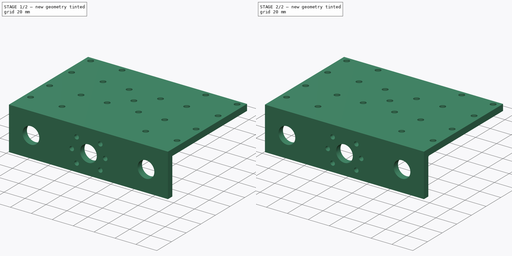
[diagram: build sequence overview — one tinted view per stage of 2, left to right]
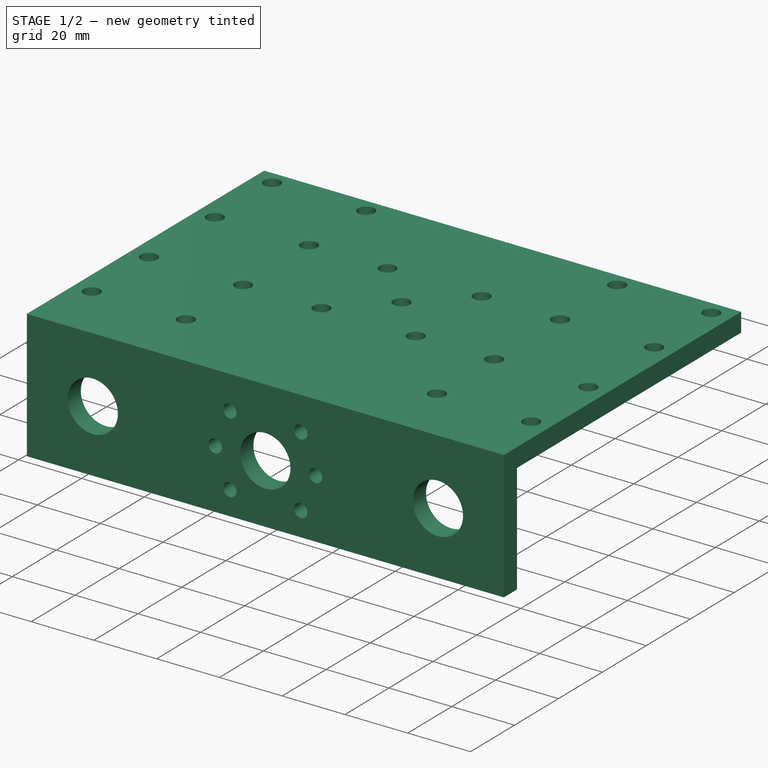
[diagram: stage 1 of 2 — iso view after this stage's code; geometry added in this stage tinted green]
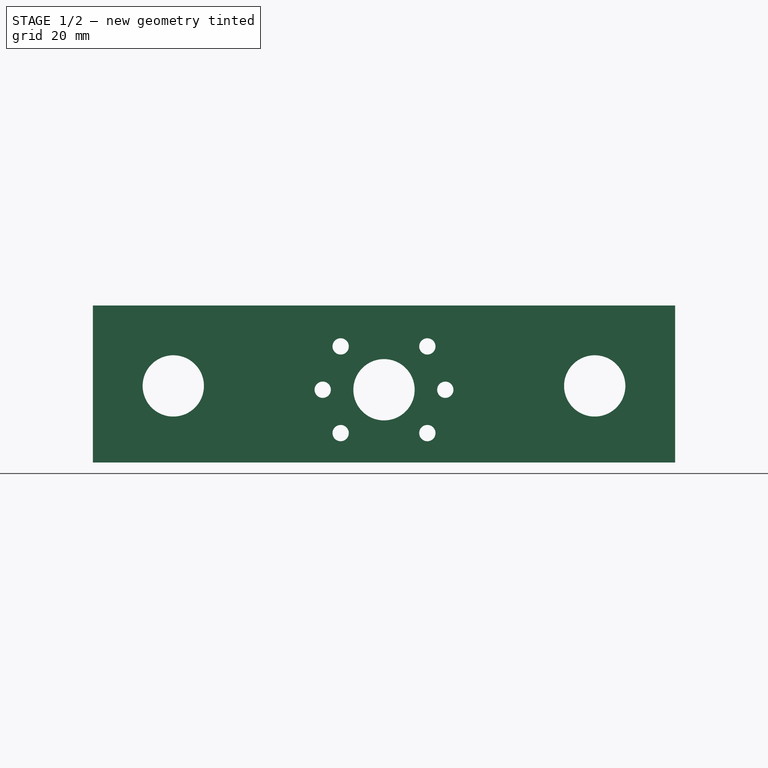
[diagram: stage 1 of 2 — front view after this stage's code; geometry added in this stage tinted green]
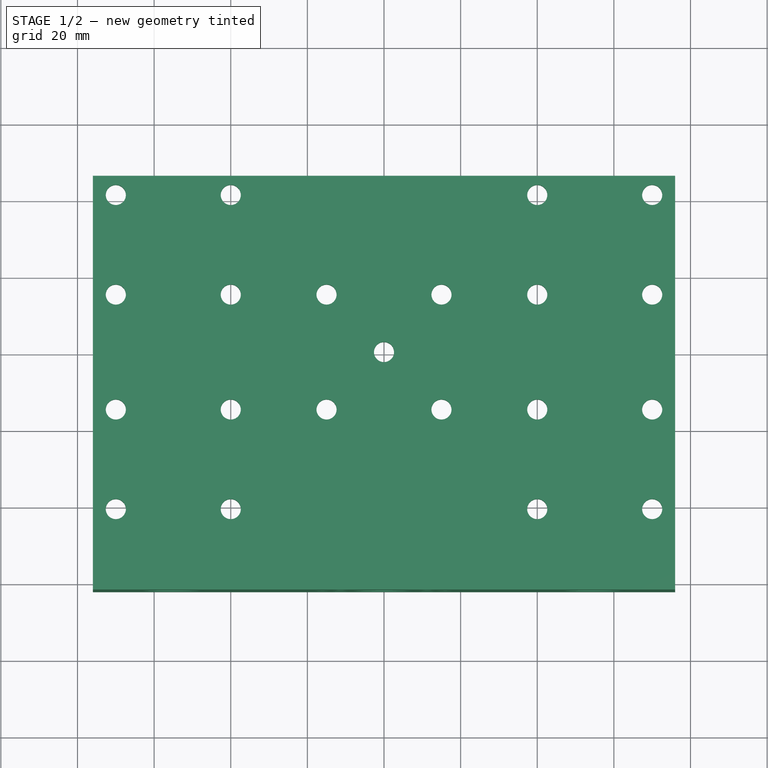
[diagram: stage 1 of 2 — top view after this stage's code; geometry added in this stage tinted green]
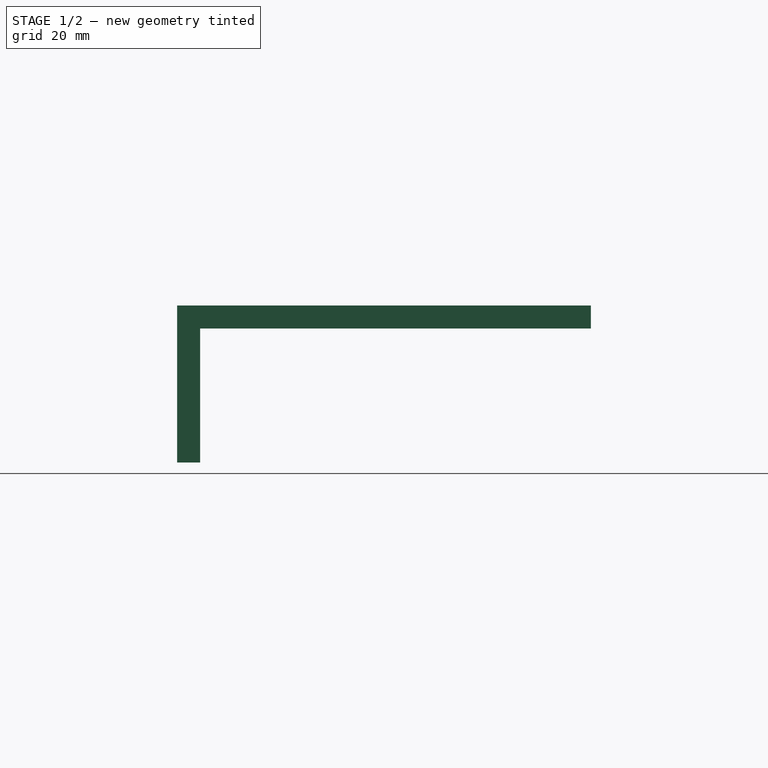
[diagram: stage 1 of 2 — right view after this stage's code; geometry added in this stage tinted green]
FCSTD DOCUMENT  (FreeCAD 0.15R4671 (Git))
Label: platform-z
License: All rights reserved
LicenseURL: http://en.wikipedia.org/wiki/All_rights_reserved
objects: Drawing::FeatureView×36, Drawing::FeatureViewPart×4, Sketcher::SketchObject×2, PartDesign::Pad×2, PartDesign::Fillet×1, Drawing::FeaturePage×1
note: 7 computed .brp shape members not serialized (recipe doc carries the construction recipe); baked Part::Feature solids carry a one-line shape summary decoded from their .brp

FEATURE [Sketcher::SketchObject] Sketch  label="top-sketch"
  sketch-geometry (39):
    g0: LineSegment StartX=-76 StartY=46 StartZ=0 EndX=76 EndY=46 EndZ=0
    g1: LineSegment StartX=76 StartY=46 StartZ=0 EndX=76 EndY=-56 EndZ=0
    g2: LineSegment StartX=76 StartY=-56 StartZ=0 EndX=-76 EndY=-56 EndZ=0
    g3: LineSegment StartX=-76 StartY=-56 StartZ=0 EndX=-76 EndY=46 EndZ=0
    g4: LineSegment [constr] StartX=-70 StartY=41 StartZ=0 EndX=70 EndY=41 EndZ=0
    g5: LineSegment [constr] StartX=70 StartY=41 StartZ=0 EndX=70 EndY=-41 EndZ=0
    g6: LineSegment [constr] StartX=70 StartY=-41 StartZ=0 EndX=-70 EndY=-41 EndZ=0
    g7: LineSegment [constr] StartX=-70 StartY=-41 StartZ=0 EndX=-70 EndY=41 EndZ=0
    g8: LineSegment [constr] StartX=-40 StartY=41 StartZ=0 EndX=-40 EndY=-41 EndZ=0
    g9: LineSegment [constr] StartX=40 StartY=41 StartZ=0 EndX=40 EndY=-41 EndZ=0
    g10: LineSegment [constr] StartX=-70 StartY=15 StartZ=0 EndX=-40 EndY=15 EndZ=0
    g11: LineSegment [constr] StartX=40 StartY=15 StartZ=0 EndX=70 EndY=15 EndZ=0
    g12: LineSegment [constr] StartX=-70 StartY=-15 StartZ=0 EndX=-40 EndY=-15 EndZ=0
    g13: LineSegment [constr] StartX=40 StartY=-15 StartZ=0 EndX=70 EndY=-15 EndZ=0
    g14: Circle CenterX=-70 CenterY=41 CenterZ=0 NormalX=0 NormalY=0 NormalZ=1 Radius=2.625
    g15: Circle CenterX=-40 CenterY=41 CenterZ=0 NormalX=0 NormalY=0 NormalZ=1 Radius=2.625
    g16: Circle CenterX=-70 CenterY=15 CenterZ=0 NormalX=0 NormalY=0 NormalZ=1 Radius=2.625
    g17: Circle CenterX=-40 CenterY=15 CenterZ=0 NormalX=0 NormalY=0 NormalZ=1 Radius=2.625
    g18: Circle CenterX=-70 CenterY=-15 CenterZ=0 NormalX=0 NormalY=0 NormalZ=1 Radius=2.625
    g19: Circle CenterX=-40 CenterY=-15 CenterZ=0 NormalX=0 NormalY=0 NormalZ=1 Radius=2.625
    g20: Circle CenterX=-70 CenterY=-41 CenterZ=0 NormalX=0 NormalY=0 NormalZ=1 Radius=2.625
    g21: Circle CenterX=-40 CenterY=-41 CenterZ=0 NormalX=0 NormalY=0 NormalZ=1 Radius=2.625
    g22: Circle CenterX=40 CenterY=41 CenterZ=0 NormalX=0 NormalY=0 NormalZ=1 Radius=2.625
    g23: Circle CenterX=70 CenterY=41 CenterZ=0 NormalX=0 NormalY=0 NormalZ=1 Radius=2.625
    g24: Circle CenterX=40 CenterY=15 CenterZ=0 NormalX=0 NormalY=0 NormalZ=1 Radius=2.625
    g25: Circle CenterX=70 CenterY=15 CenterZ=0 NormalX=0 NormalY=0 NormalZ=1 Radius=2.625
    g26: Circle CenterX=40 CenterY=-15 CenterZ=0 NormalX=0 NormalY=0 NormalZ=1 Radius=2.625
    g27: Circle CenterX=70 CenterY=-15 CenterZ=0 NormalX=0 NormalY=0 NormalZ=1 Radius=2.625
    g28: Circle CenterX=40 CenterY=-41 CenterZ=0 NormalX=0 NormalY=0 NormalZ=1 Radius=2.625
    g29: Circle CenterX=70 CenterY=-41 CenterZ=0 NormalX=0 NormalY=0 NormalZ=1 Radius=2.625
    g30: Circle CenterX=0 CenterY=0 CenterZ=0 NormalX=0 NormalY=0 NormalZ=1 Radius=2.625
    g31: LineSegment [constr] StartX=-15 StartY=15 StartZ=0 EndX=15 EndY=15 EndZ=0
    g32: LineSegment [constr] StartX=15 StartY=15 StartZ=0 EndX=15 EndY=-15 EndZ=0
    g33: LineSegment [constr] StartX=15 StartY=-15 StartZ=0 EndX=-15 EndY=-15 EndZ=0
    g34: LineSegment [constr] StartX=-15 StartY=-15 StartZ=0 EndX=-15 EndY=15 EndZ=0
    g35: Circle CenterX=-15 CenterY=15 CenterZ=0 NormalX=0 NormalY=0 NormalZ=1 Radius=2.625
    g36: Circle CenterX=15 CenterY=15 CenterZ=0 NormalX=0 NormalY=0 NormalZ=1 Radius=2.625
    g37: Circle CenterX=-15 CenterY=-15 CenterZ=0 NormalX=0 NormalY=0 NormalZ=1 Radius=2.625
    g38: Circle CenterX=15 CenterY=-15 CenterZ=0 NormalX=0 NormalY=0 NormalZ=1 Radius=2.625
  constraints (98):
    c: Coincident(g0,g1)
    c: Coincident(g1,g2)
    c: Coincident(g2,g3)
    c: Coincident(g3,g0)
    c: Horizontal(g0)
    c: Horizontal(g2)
    c: Vertical(g1)
    c: Vertical(g3)
    c: Symmetric(g0,g0,g-2)
    c: Coincident(g4,g5)
    c: Coincident(g5,g6)
    c: Coincident(g6,g7)
    c: Coincident(g7,g4)
    c: Horizontal(g4)
    c: Horizontal(g6)
    c: Vertical(g5)
    c: Vertical(g7)
    c: Symmetric(g4,g4,g-2)
    c: DistanceX(g2,g1) = 152
    c: DistanceX(g4,g0) = -6
    c: DistanceY(g4,g0) = 5
    c: PointOnObject(g8,g6)
    c: Vertical(g8)
    c: PointOnObject(g9,g4)
    c: PointOnObject(g9,g6)
    c: Vertical(g9)
    c: PointOnObject(g10,g7)
    c: PointOnObject(g10,g8)
    c: Horizontal(g10)
    c: PointOnObject(g11,g9)
    c: PointOnObject(g11,g5)
    c: Horizontal(g11)
    c: PointOnObject(g12,g7)
    c: PointOnObject(g12,g8)
    c: Horizontal(g12)
    c: PointOnObject(g13,g9)
    c: PointOnObject(g13,g5)
    c: Horizontal(g13)
    c: PointOnObject(g11,g10)
    c: PointOnObject(g13,g12)
    c: DistanceX(g6,g8) = 30
    c: DistanceY(g12,g6) = -26
    c: DistanceX(g9,g5) = 30
    c: DistanceY(g4,g10) = -26
    c: DistanceY(g6,g2) = -15
    c: Symmetric(g4,g6,g-1)
    c: DistanceY(g10,g12) = -30
    c: Coincident(g14,g4)
    c: Coincident(g15,g8)
    c: Coincident(g16,g10)
    c: Coincident(g17,g10)
    c: Coincident(g18,g12)
    c: Coincident(g19,g12)
    c: Coincident(g20,g6)
    c: Coincident(g21,g8)
    c: Coincident(g22,g9)
    c: Coincident(g23,g4)
    c: Coincident(g24,g11)
    c: Coincident(g25,g11)
    c: Coincident(g26,g13)
    c: Coincident(g27,g13)
    c: Coincident(g28,g9)
    c: Coincident(g29,g5)
    c: Radius(g14) = 2.625
    c: Equal(g14,g15)
    c: Equal(g14,g17)
    c: Equal(g14,g16)
    c: Equal(g14, g18-g21) x4
    c: Equal(g14,g28)
    c: Equal(g14,g29)
    c: Equal(g14,g27)
    c: Equal(g14,g26)
    c: Equal(g14,g24)
    c: Equal(g14,g25)
    c: Equal(g14,g22)
    c: Equal(g14,g23)
    c: Coincident(g30,g-1)
    c: Coincident(g31,g32)
    c: Coincident(g32,g33)
    c: Coincident(g33,g34)
    c: Coincident(g34,g31)
    c: Horizontal(g31)
    c: Horizontal(g33)
    c: Vertical(g32)
    c: Vertical(g34)
    c: Coincident(g35,g31)
    c: Coincident(g36,g31)
    c: Coincident(g37,g33)
    c: Coincident(g38,g32)
    c: Radius(g35) = 2.625
    c: Equal(g35,g36)
    c: Equal(g35,g38)
    c: Equal(g35,g37)
    c: Equal(g35,g30)
    c: Symmetric(g31,g33,g-1)
    c: Equal(g32,g33)
    c: DistanceX(g33,g32) = 30
    c: PointOnObject(g8,g4)
FEATURE [PartDesign::Pad] Pad  label="top"
  Length = 6
  Length2 = 100
  Sketch = -> Sketch
  Type = 0
FEATURE [Sketcher::SketchObject] Sketch001  label="front-sketch"
  ExternalGeometry = -> [Pad]
  Placement = pos=(0,-56,0) rot=(1,0,0;1.5708rad)
  Support = -> Pad [Face3]
  sketch-geometry (18):
    g0: LineSegment StartX=-76 StartY=6 StartZ=0 EndX=76 EndY=6 EndZ=0
    g1: LineSegment StartX=76 StartY=6 StartZ=0 EndX=76 EndY=-35 EndZ=0
    g2: LineSegment StartX=76 StartY=-35 StartZ=0 EndX=-76 EndY=-35 EndZ=0
    g3: LineSegment StartX=-76 StartY=-35 StartZ=0 EndX=-76 EndY=6 EndZ=0
    g4: LineSegment [constr] StartX=-76 StartY=-15 StartZ=0 EndX=76 EndY=-15 EndZ=0
    g5: Circle CenterX=0 CenterY=-16 CenterZ=0 NormalX=0 NormalY=0 NormalZ=1 Radius=8
    g6: Circle CenterX=-55 CenterY=-15 CenterZ=0 NormalX=0 NormalY=0 NormalZ=1 Radius=8
    g7: Circle CenterX=55 CenterY=-15 CenterZ=0 NormalX=0 NormalY=0 NormalZ=1 Radius=8
    g8: Circle [constr] CenterX=0 CenterY=-16 CenterZ=0 NormalX=0 NormalY=0 NormalZ=1 Radius=16
    g9: LineSegment [constr] StartX=-11.3137 StartY=-4.68629 StartZ=0 EndX=11.3137 EndY=-27.3137 EndZ=0
    g10: LineSegment [constr] StartX=-11.3137 StartY=-27.3137 StartZ=0 EndX=11.3137 EndY=-4.68629 EndZ=0
    g11: Circle CenterX=-11.3137 CenterY=-4.68629 CenterZ=0 NormalX=0 NormalY=0 NormalZ=1 Radius=2.125
    g12: Circle CenterX=11.3137 CenterY=-4.68629 CenterZ=0 NormalX=0 NormalY=0 NormalZ=1 Radius=2.125
    g13: Circle CenterX=-16 CenterY=-16 CenterZ=0 NormalX=0 NormalY=0 NormalZ=1 Radius=2.125
    g14: Circle CenterX=16 CenterY=-16 CenterZ=0 NormalX=0 NormalY=0 NormalZ=1 Radius=2.125
    g15: Circle CenterX=-11.3137 CenterY=-27.3137 CenterZ=0 NormalX=0 NormalY=0 NormalZ=1 Radius=2.125
    g16: Circle CenterX=11.3137 CenterY=-27.3137 CenterZ=0 NormalX=0 NormalY=0 NormalZ=1 Radius=2.125
    g17: LineSegment [constr] StartX=-16 StartY=-16 StartZ=0 EndX=16 EndY=-16 EndZ=0
  constraints (52):
    c: Coincident(g0,g1)
    c: Coincident(g1,g2)
    c: Coincident(g2,g3)
    c: Coincident(g3,g0)
    c: Horizontal(g0)
    c: Horizontal(g2)
    c: Vertical(g1)
    c: Vertical(g3)
    c: Coincident(g0,g-3)
    c: Coincident(g0,g-3)
    c: PointOnObject(g4,g3)
    c: PointOnObject(g4,g1)
    c: Horizontal(g4)
    c: PointOnObject(g6,g4)
    c: PointOnObject(g7,g4)
    c: DistanceX(g6,g7) = 110
    c: Symmetric(g7,g6,g-2)
    c: DistanceY(g-1,g4) = -15
    c: Radius(g6) = 8
    c: Equal(g6,g7)
    c: Radius(g5) = 8
    c: Coincident(g8,g5)
    c: DistanceY(g-1,g2) = -35
    c: Radius(g8) = 16
    c: PointOnObject(g9,g8)
    c: PointOnObject(g9,g8)
    c: PointOnObject(g10,g8)
    c: PointOnObject(g10,g8)
    c: Angle(g4,g10) = 0.785398
    c: Angle(g9,g4) = 0.785398
    c: Coincident(g11,g9)
    c: Coincident(g12,g10)
    c: Coincident(g15,g10)
    c: Coincident(g16,g9)
    c: Radius(g13) = 2.125
    c: Equal(g13,g11)
    c: Equal(g13,g12)
    c: Equal(g13,g14)
    c: Equal(g13,g16)
    c: Equal(g13,g15)
    c: PointOnObject(g5,g-2)
    c: PointOnObject(g5,g10)
    c: PointOnObject(g5,g9)
    c: Horizontal(g17)
    c: PointOnObject(g5,g17)
    c: PointOnObject(g13,g17)
    c: PointOnObject(g13,g8)
    c: PointOnObject(g14,g17)
    c: PointOnObject(g14,g8)
    c: PointOnObject(g17,g8)
    c: PointOnObject(g17,g8)
    c: DistanceY(g-1,g5) = -16
FEATURE [PartDesign::Pad] Pad001  label="front"
  Length = 6
  Length2 = 100
  Sketch = -> Sketch001
  Type = 0
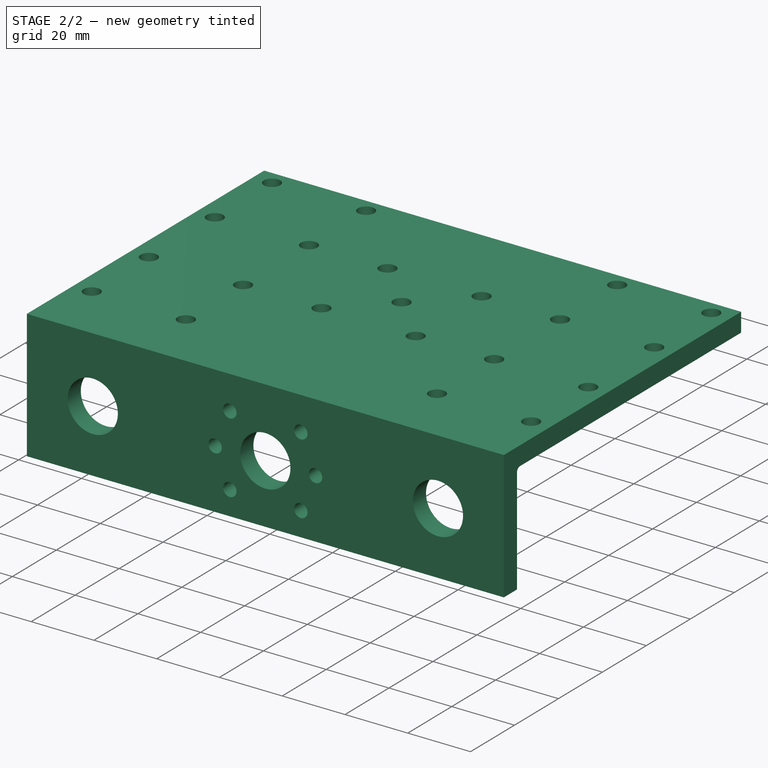
[diagram: stage 2 of 2 — iso view after this stage's code; geometry added in this stage tinted green]
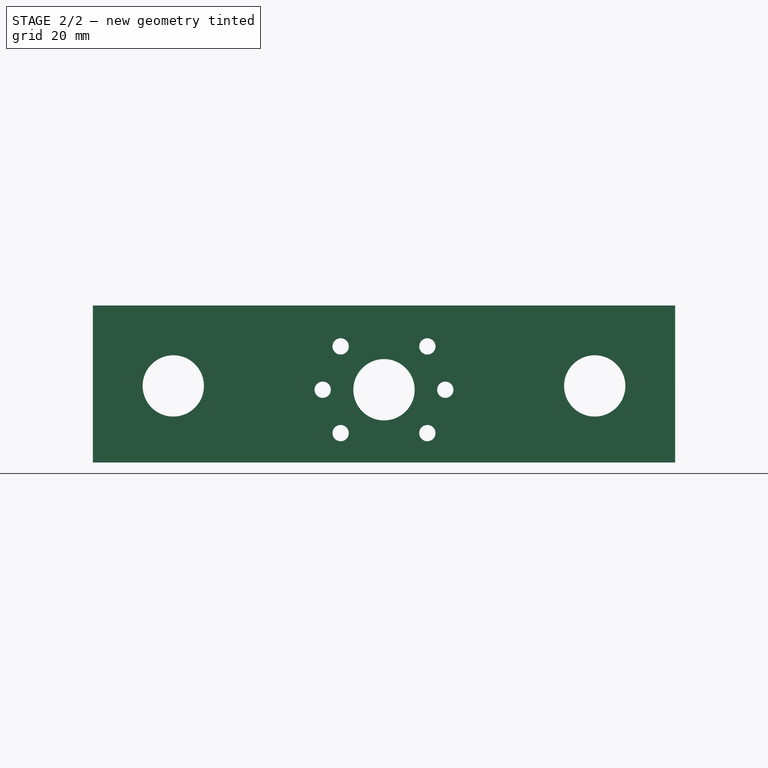
[diagram: stage 2 of 2 — front view after this stage's code; geometry added in this stage tinted green]
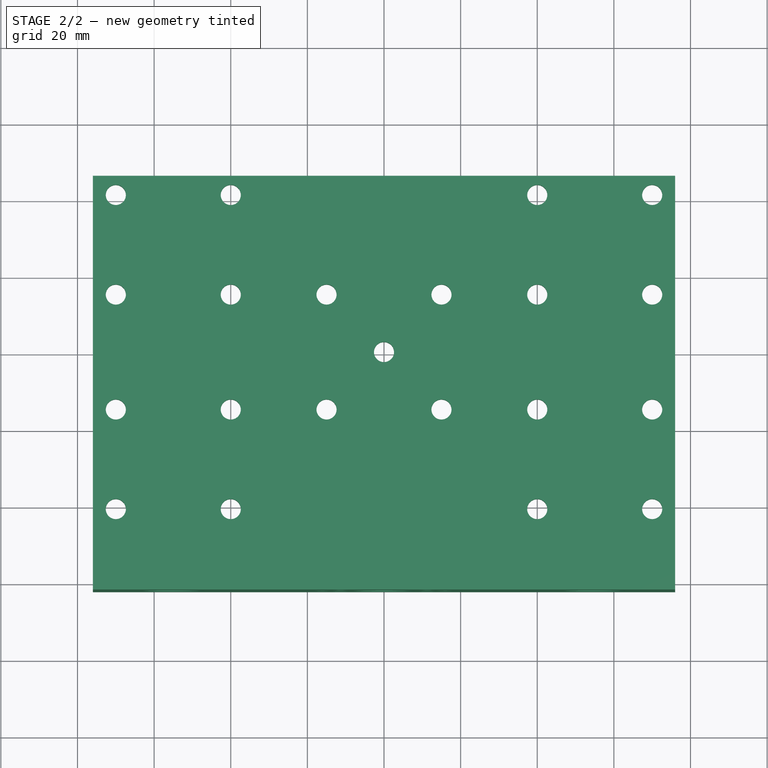
[diagram: stage 2 of 2 — top view after this stage's code; geometry added in this stage tinted green]
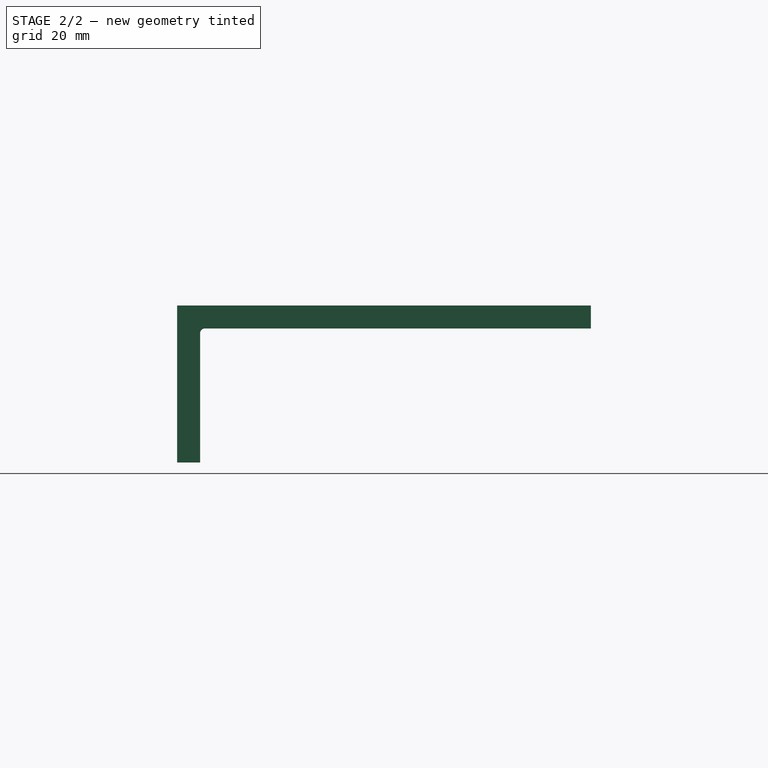
[diagram: stage 2 of 2 — right view after this stage's code; geometry added in this stage tinted green]
FEATURE [PartDesign::Fillet] Fillet  label="platform-z"
  Base = -> Pad001 [Edge7]
  Radius = 1.25
FEATURE [Drawing::FeatureViewPart] Ortho  label="Ortho_0_0"
  Direction = (0,-1,0)
  HiddenWidth = 0.15
  LineWidth = 0.35
  Rotation = 90
  Scale = 0.75
  ShowHiddenLines = false
  ShowSmoothLines = false
  Source = -> Fillet
  Tolerance = 0.05
  ViewResult = <g id="Ortho_0_0"\n   transform="rotate(90,91,151) translate(91,151) scale(0.75,0.75)"\n  >\n<g   stroke="rgb(0, 0, 0)"\n   stroke-width="0.466667"\n   stroke-linecap="butt"\n   stroke-linejoin="miter"\n   fill="none"\n   transform="scale(1,-1)"\n  >\n<path id= "1" d=" M 35 -76 L -6 -76 " />\n<path id= "2" d=" M -6 76 L 35 76 " />\n<path id= "3" d=" M -6 -76 L -6 76 " />\n<path id= "4" d=" M 35 76 L 35 -76 " />\n<circle cx ="16" cy ="0" r ="8" /><circle cx ="15" cy ="55" r ="8" /><circle cx ="15" cy ="-55" r ="8" /><circle cx ="27.3137" cy ="-11.3137" r ="2.125" /><circle cx ="16" cy ="16" r ="2.125" /><circle cx ="16" cy ="-16" r ="2.125" /><circle cx ="4.68629" cy ="11.3137" r ="2.125" /><circle cx ="27.3137" cy ="11.3137" r ="2.125" /><circle cx ="4.68629" cy ="-11.3137" r ="2.125" /></g>\n</g>
  Visible = true
  X = 91
  Y = 151
FEATURE [Drawing::FeatureViewPart] Ortho001  label="Ortho_0_1"
  Direction = (0,0,1)
  HiddenWidth = 0.15
  LineWidth = 0.35
  Rotation = 0
  Scale = 0.75
  ShowHiddenLines = false
  ShowSmoothLines = false
  Source = -> Fillet
  Tolerance = 0.05
  ViewResult = <blob: 2884 chars omitted>
  Visible = true
  X = 91
  Y = 67.25
FEATURE [Drawing::FeatureViewPart] Ortho002  label="Ortho_1_0"
  Direction = (1,0,0)
  HiddenWidth = 0.15
  LineWidth = 0.35
  Rotation = -90
  Scale = 0.75
  ShowHiddenLines = false
  ShowSmoothLines = false
  Source = -> Fillet
  Tolerance = 0.05
  ViewResult = <g id="Ortho_1_0"\n   transform="rotate(-90,228.5,151) translate(228.5,151) scale(0.75,0.75)"\n  >\n<g   stroke="rgb(0, 0, 0)"\n   stroke-width="0.466667"\n   stroke-linecap="butt"\n   stroke-linejoin="miter"\n   fill="none"\n   transform="scale(1,-1)"\n  >\n<path id= "1" d=" M 0 -46 L 0 54.75 " />\n<path d="M-2.22045e-16 54.75 A1.25 1.25 0 0 1 -1.25 56" /><path id= "3" d=" M 0 -46 L 6 -46 " />\n<path id= "4" d=" M -1.25 56 L -35 56 " />\n<path id= "5" d=" M -35 56 L -35 62 " />\n<path id= "6" d=" M 6 62 L -35 62 " />\n<path id= "7" d=" M 6 56 L 6 62 " />\n<path id= "8" d=" M 6 -46 L 6 56 " />\n</g>\n</g>
  Visible = true
  X = 228.5
  Y = 151
FEATURE [Drawing::FeatureViewPart] Ortho003  label="Ortho_1_1"
  Direction = (0.57735,-0.57735,0.57735)
  HiddenWidth = 0.15
  LineWidth = 0.35
  Rotation = 60
  Scale = 0.5
  ShowHiddenLines = false
  ShowSmoothLines = false
  Source = -> Fillet
  Tolerance = 0.05
  ViewResult = <blob: 7587 chars omitted>
  Visible = true
  X = 225.328
  Y = 65.6974
FEATURE [Drawing::FeatureView] centerLines001
  Rotation = 0
  ViewResult = <g transform="scale(0.750000,0.750000)" stroke="rgb(0,0,255)"  stroke-width="0.426667" > <path d="M 121.333333,43.666667 L 121.333333,39.666667 M 121.333333,37.000000 L 121.333333,32.348286 "/>\n<path d="M 121.333333,43.666667 L 121.333333,47.666667 M 121.333333,50.333333 L 121.333333,58.333333 M 121.333333,61.000000 L 121.333333,65.000000 M 121.333333,67.666667 L 121.333333,75.666667 M 121.333333,78.333333 L 121.333333,82.333333 M 121.333333,85.000000 L 121.333333,93.000000 M 121.333333,95.666667 L 121.333333,99.666667 M 121.333333,102.333333 L 121.333333,110.333333 M 121.333333,113.000000 L 121.333333,117.000000 M 121.333333,119.666667 L 121.333333,127.666667 M 121.333333,130.333333 L 121.333333,134.333333 M 121.333333,137.000000 L 121.333333,145.000000 M 121.333333,147.666667 L 121.333333,151.666667 M 121.333333,154.333333 L 121.333333,159.397352 "/> </g> 
  Visible = true
  X = 0
  Y = 0
FEATURE [Drawing::FeatureView] dim001
  Rotation = 0
  ViewResult = <g> \n  <line x1="34.000000" y1="30.750000" x2="34.000000" y2="12.374008" style="stroke:rgb(0,0,255);stroke-width:0.50" />\n<line x1="148.000000" y1="30.750000" x2="148.000000" y2="12.374008" style="stroke:rgb(0,0,255);stroke-width:0.50" />\n<line x1="34.000000" y1="13.374008" x2="148.000000" y2="13.374008" style="stroke:rgb(0,0,255);stroke-width:0.50" /> \n  <polygon points="148.000000,13.374008 145.000000,12.374008 144.000000,13.374008 145.000000,14.374008" style="fill:rgb(0,0,255);stroke:rgb(0,0,255);stroke-width:0" /><polygon points="34.000000,13.374008 37.000000,14.374008 38.000000,13.374008 37.000000,12.374008" style="fill:rgb(0,0,255);stroke:rgb(0,0,255);stroke-width:0" /> \n  <text x="91.000000" y="11.374008" font-family="inherit" font-size="3.6" fill="rgb(0,0,255)" text-anchor="middle" transform="rotate(0.000000 91.000000,11.374008)" >152</text> </g>
  Visible = true
  X = 0
  Y = 0
FEATURE [Drawing::FeatureView] dim002
  Rotation = 0
  ViewResult = <g> \n  <line x1="34.000000" y1="30.750000" x2="34.000000" y2="20.130933" style="stroke:rgb(0,0,255);stroke-width:0.50" />\n<line x1="91.000000" y1="22.261215" x2="91.000000" y2="20.130933" style="stroke:rgb(0,0,255);stroke-width:0.50" />\n<line x1="34.000000" y1="21.130933" x2="91.000000" y2="21.130933" style="stroke:rgb(0,0,255);stroke-width:0.50" /> \n  <polygon points="91.000000,21.130933 88.000000,20.130933 87.000000,21.130933 88.000000,22.130933" style="fill:rgb(0,0,255);stroke:rgb(0,0,255);stroke-width:0" /><polygon points="34.000000,21.130933 37.000000,22.130933 38.000000,21.130933 37.000000,20.130933" style="fill:rgb(0,0,255);stroke:rgb(0,0,255);stroke-width:0" /> \n  <text x="62.500000" y="19.130933" font-family="inherit" font-size="3.6" fill="rgb(0,0,255)" text-anchor="middle" transform="rotate(0.000000 62.500000,19.130933)" >76</text> </g>
  Visible = true
  X = 0
  Y = 0
FEATURE [Drawing::FeatureView] dim003
  Rotation = 0
  ViewResult = <g> \n  <line x1="32.000000" y1="32.750000" x2="19.542477" y2="32.750000" style="stroke:rgb(0,0,255);stroke-width:0.50" />\n<line x1="32.000000" y1="113.750000" x2="19.542477" y2="113.750000" style="stroke:rgb(0,0,255);stroke-width:0.50" />\n<line x1="20.542477" y1="32.750000" x2="20.542477" y2="113.750000" style="stroke:rgb(0,0,255);stroke-width:0.50" /> \n  <polygon points="20.542477,113.750000 21.542477,110.750000 20.542477,109.750000 19.542477,110.750000" style="fill:rgb(0,0,255);stroke:rgb(0,0,255);stroke-width:0" /><polygon points="20.542477,32.750000 19.542477,35.750000 20.542477,36.750000 21.542477,35.750000" style="fill:rgb(0,0,255);stroke:rgb(0,0,255);stroke-width:0" /> \n  <text x="18.542477" y="73.250000" font-family="inherit" font-size="3.6" fill="rgb(0,0,255)" text-anchor="middle" transform="rotate(-90.000000 18.542477,73.250000)" >108</text> </g>
  Visible = true
  X = 0
  Y = 0
FEATURE [Drawing::FeatureView] dim004
  Rotation = 0
  ViewResult = <g> \n  <line x1="38.500000" y1="100.000000" x2="38.500000" y2="122.239603" style="stroke:rgb(0,0,255);stroke-width:0.50" />\n<line x1="61.000000" y1="100.000000" x2="61.000000" y2="122.239603" style="stroke:rgb(0,0,255);stroke-width:0.50" />\n<line x1="38.500000" y1="121.239603" x2="61.000000" y2="121.239603" style="stroke:rgb(0,0,255);stroke-width:0.50" /> \n  <polygon points="61.000000,121.239603 58.000000,120.239603 57.000000,121.239603 58.000000,122.239603" style="fill:rgb(0,0,255);stroke:rgb(0,0,255);stroke-width:0" /><polygon points="38.500000,121.239603 41.500000,122.239603 42.500000,121.239603 41.500000,120.239603" style="fill:rgb(0,0,255);stroke:rgb(0,0,255);stroke-width:0" /> \n  <text x="49.750000" y="119.239603" font-family="inherit" font-size="3.6" fill="rgb(0,0,255)" text-anchor="middle" transform="rotate(0.000000 49.750000,119.239603)" >30</text> </g>
  Visible = true
  X = 0
  Y = 0
FEATURE [Drawing::FeatureView] dim005
  Rotation = 0
  ViewResult = <g> \n  <line x1="121.000000" y1="100.000000" x2="121.000000" y2="122.380908" style="stroke:rgb(0,0,255);stroke-width:0.50" />\n<line x1="143.500000" y1="100.000000" x2="143.500000" y2="122.380908" style="stroke:rgb(0,0,255);stroke-width:0.50" />\n<line x1="121.000000" y1="121.380908" x2="143.500000" y2="121.380908" style="stroke:rgb(0,0,255);stroke-width:0.50" /> \n  <polygon points="143.500000,121.380908 140.500000,120.380908 139.500000,121.380908 140.500000,122.380908" style="fill:rgb(0,0,255);stroke:rgb(0,0,255);stroke-width:0" /><polygon points="121.000000,121.380908 124.000000,122.380908 125.000000,121.380908 124.000000,120.380908" style="fill:rgb(0,0,255);stroke:rgb(0,0,255);stroke-width:0" /> \n  <text x="132.250000" y="119.380908" font-family="inherit" font-size="3.6" fill="rgb(0,0,255)" text-anchor="middle" transform="rotate(0.000000 132.250000,119.380908)" >30</text> </g>
  Visible = true
  X = 0
  Y = 0
FEATURE [Drawing::FeatureView] dim006
  Rotation = 0
  ViewResult = <g> \n  <line x1="38.500000" y1="100.000000" x2="38.500000" y2="128.039539" style="stroke:rgb(0,0,255);stroke-width:0.50" />\n<line x1="143.500000" y1="100.000000" x2="143.500000" y2="128.039539" style="stroke:rgb(0,0,255);stroke-width:0.50" />\n<line x1="38.500000" y1="127.039539" x2="143.500000" y2="127.039539" style="stroke:rgb(0,0,255);stroke-width:0.50" /> \n  <polygon points="143.500000,127.039539 140.500000,126.039539 139.500000,127.039539 140.500000,128.039539" style="fill:rgb(0,0,255);stroke:rgb(0,0,255);stroke-width:0" /><polygon points="38.500000,127.039539 41.500000,128.039539 42.500000,127.039539 41.500000,126.039539" style="fill:rgb(0,0,255);stroke:rgb(0,0,255);stroke-width:0" /> \n  <text x="91.000000" y="125.039539" font-family="inherit" font-size="3.6" fill="rgb(0,0,255)" text-anchor="middle" transform="rotate(0.000000 91.000000,125.039539)" >140</text> </g>
  Visible = true
  X = 0
  Y = 0
FEATURE [Drawing::FeatureView] dim007
  Rotation = 0
  ViewResult = <g> \n  <line x1="34.000000" y1="115.750000" x2="34.000000" y2="128.039539" style="stroke:rgb(0,0,255);stroke-width:0.50" />\n<line x1="38.500000" y1="100.000000" x2="38.500000" y2="128.039539" style="stroke:rgb(0,0,255);stroke-width:0.50" />\n<line x1="34.000000" y1="127.039539" x2="38.500000" y2="127.039539" style="stroke:rgb(0,0,255);stroke-width:0.50" /> \n  <polygon points="38.500000,127.039539 41.500000,128.039539 42.500000,127.039539 41.500000,126.039539" style="fill:rgb(0,0,255);stroke:rgb(0,0,255);stroke-width:0" /><polygon points="34.000000,127.039539 31.000000,126.039539 30.000000,127.039539 31.000000,128.039539" style="fill:rgb(0,0,255);stroke:rgb(0,0,255);stroke-width:0" /> \n  <text x="36.250000" y="125.039539" font-family="inherit" font-size="3.6" fill="rgb(0,0,255)" text-anchor="middle" transform="rotate(0.000000 36.250000,125.039539)" >6</text> </g>
  Visible = true
  X = 0
  Y = 0
FEATURE [Drawing::FeatureView] dim008
  Rotation = 0
  ViewResult = <g> \n  <line x1="145.500000" y1="36.500000" x2="157.222668" y2="36.500000" style="stroke:rgb(0,0,255);stroke-width:0.50" />\n<line x1="145.500000" y1="56.000000" x2="157.222668" y2="56.000000" style="stroke:rgb(0,0,255);stroke-width:0.50" />\n<line x1="156.222668" y1="36.500000" x2="156.222668" y2="56.000000" style="stroke:rgb(0,0,255);stroke-width:0.50" /> \n  <polygon points="156.222668,56.000000 157.222668,53.000000 156.222668,52.000000 155.222668,53.000000" style="fill:rgb(0,0,255);stroke:rgb(0,0,255);stroke-width:0" /><polygon points="156.222668,36.500000 155.222668,39.500000 156.222668,40.500000 157.222668,39.500000" style="fill:rgb(0,0,255);stroke:rgb(0,0,255);stroke-width:0" /> \n  <text x="154.222668" y="46.250000" font-family="inherit" font-size="3.6" fill="rgb(0,0,255)" text-anchor="middle" transform="rotate(-90.000000 154.222668,46.250000)" >26</text> </g>
  Visible = true
  X = 0
  Y = 0
FEATURE [Drawing::FeatureView] dim009
  Rotation = 0
  ViewResult = <g> \n  <line x1="145.500000" y1="78.500000" x2="157.729337" y2="78.500000" style="stroke:rgb(0,0,255);stroke-width:0.50" />\n<line x1="145.500000" y1="98.000000" x2="157.729337" y2="98.000000" style="stroke:rgb(0,0,255);stroke-width:0.50" />\n<line x1="156.729337" y1="78.500000" x2="156.729337" y2="98.000000" style="stroke:rgb(0,0,255);stroke-width:0.50" /> \n  <polygon points="156.729337,98.000000 157.729337,95.000000 156.729337,94.000000 155.729337,95.000000" style="fill:rgb(0,0,255);stroke:rgb(0,0,255);stroke-width:0" /><polygon points="156.729337,78.500000 155.729337,81.500000 156.729337,82.500000 157.729337,81.500000" style="fill:rgb(0,0,255);stroke:rgb(0,0,255);stroke-width:0" /> \n  <text x="154.729337" y="88.250000" font-family="inherit" font-size="3.6" fill="rgb(0,0,255)" text-anchor="middle" transform="rotate(-90.000000 154.729337,88.250000)" >26</text> </g>
  Visible = true
  X = 0
  Y = 0
FEATURE [Drawing::FeatureView] dim010
  Rotation = 0
  ViewResult = <g> \n  <line x1="145.500000" y1="36.500000" x2="164.316022" y2="36.500000" style="stroke:rgb(0,0,255);stroke-width:0.50" />\n<line x1="145.500000" y1="98.000000" x2="164.316022" y2="98.000000" style="stroke:rgb(0,0,255);stroke-width:0.50" />\n<line x1="163.316022" y1="36.500000" x2="163.316022" y2="98.000000" style="stroke:rgb(0,0,255);stroke-width:0.50" /> \n  <polygon points="163.316022,98.000000 164.316022,95.000000 163.316022,94.000000 162.316022,95.000000" style="fill:rgb(0,0,255);stroke:rgb(0,0,255);stroke-width:0" /><polygon points="163.316022,36.500000 162.316022,39.500000 163.316022,40.500000 164.316022,39.500000" style="fill:rgb(0,0,255);stroke:rgb(0,0,255);stroke-width:0" /> \n  <text x="161.316022" y="67.250000" font-family="inherit" font-size="3.6" fill="rgb(0,0,255)" text-anchor="middle" transform="rotate(-90.000000 161.316022,67.250000)" >82</text> </g>
  Visible = true
  X = 0
  Y = 0
FEATURE [Drawing::FeatureView] dim011
  Rotation = 0
  ViewResult = <g> \n  <line x1="150.000000" y1="113.750000" x2="164.316022" y2="113.750000" style="stroke:rgb(0,0,255);stroke-width:0.50" />\n<line x1="145.500000" y1="98.000000" x2="164.316022" y2="98.000000" style="stroke:rgb(0,0,255);stroke-width:0.50" />\n<line x1="163.316022" y1="113.750000" x2="163.316022" y2="98.000000" style="stroke:rgb(0,0,255);stroke-width:0.50" /> \n  <polygon points="163.316022,98.000000 162.316022,101.000000 163.316022,102.000000 164.316022,101.000000" style="fill:rgb(0,0,255);stroke:rgb(0,0,255);stroke-width:0" /><polygon points="163.316022,113.750000 164.316022,110.750000 163.316022,109.750000 162.316022,110.750000" style="fill:rgb(0,0,255);stroke:rgb(0,0,255);stroke-width:0" /> \n  <text x="161.316022" y="105.875000" font-family="inherit" font-size="3.6" fill="rgb(0,0,255)" text-anchor="middle" transform="rotate(-90.000000 161.316022,105.875000)" >21</text> </g>
  Visible = true
  X = 0
  Y = 0
FEATURE [Drawing::FeatureView] centerLines002
  Rotation = 0
  ViewResult = <g transform="scale(0.750000,0.750000)" stroke="rgb(0,0,255)"  stroke-width="0.426667" > <path d="M 121.333333,89.666667 L 121.333333,91.605595 "/>\n<path d="M 121.333333,89.666667 L 117.333333,89.666667 M 114.666667,89.666667 L 106.666667,89.666667 M 104.000000,89.666667 L 100.000000,89.666667 M 97.333333,89.666667 L 94.578048,89.666667 "/>\n<path d="M 121.333333,89.666667 L 121.333333,89.714034 "/>\n<path d="M 121.333333,89.666667 L 125.333333,89.666667 M 128.000000,89.666667 L 136.000000,89.666667 M 138.666667,89.666667 L 142.666667,89.666667 M 145.333333,89.666667 L 147.541755,89.666667 "/> </g> 
  Visible = true
  X = 0
  Y = 0
FEATURE [Drawing::FeatureView] dim012
  Rotation = 0
  ViewResult = <g> \n  <line x1="77.750000" y1="78.500000" x2="69.722424" y2="78.500000" style="stroke:rgb(0,0,255);stroke-width:0.50" />\n<line x1="89.000000" y1="113.750000" x2="69.722424" y2="113.750000" style="stroke:rgb(0,0,255);stroke-width:0.50" />\n<line x1="70.722424" y1="78.500000" x2="70.722424" y2="113.750000" style="stroke:rgb(0,0,255);stroke-width:0.50" /> \n  <polygon points="70.722424,113.750000 71.722424,110.750000 70.722424,109.750000 69.722424,110.750000" style="fill:rgb(0,0,255);stroke:rgb(0,0,255);stroke-width:0" /><polygon points="70.722424,78.500000 69.722424,81.500000 70.722424,82.500000 71.722424,81.500000" style="fill:rgb(0,0,255);stroke:rgb(0,0,255);stroke-width:0" /> \n  <text x="68.722424" y="96.125000" font-family="inherit" font-size="3.6" fill="rgb(0,0,255)" text-anchor="middle" transform="rotate(-90.000000 68.722424,96.125000)" >47</text> </g>
  Visible = true
  X = 0
  Y = 0
FEATURE [Drawing::FeatureView] dim013
  Rotation = 0
  ViewResult = <g> \n  <line x1="77.750000" y1="78.500000" x2="69.722424" y2="78.500000" style="stroke:rgb(0,0,255);stroke-width:0.50" />\n<line x1="77.750000" y1="56.000000" x2="69.722424" y2="56.000000" style="stroke:rgb(0,0,255);stroke-width:0.50" />\n<line x1="70.722424" y1="78.500000" x2="70.722424" y2="56.000000" style="stroke:rgb(0,0,255);stroke-width:0.50" /> \n  <polygon points="70.722424,56.000000 69.722424,59.000000 70.722424,60.000000 71.722424,59.000000" style="fill:rgb(0,0,255);stroke:rgb(0,0,255);stroke-width:0" /><polygon points="70.722424,78.500000 71.722424,75.500000 70.722424,74.500000 69.722424,75.500000" style="fill:rgb(0,0,255);stroke:rgb(0,0,255);stroke-width:0" /> \n  <text x="68.722424" y="67.250000" font-family="inherit" font-size="3.6" fill="rgb(0,0,255)" text-anchor="middle" transform="rotate(-90.000000 68.722424,67.250000)" >30</text> </g>
  Visible = true
  X = 0
  Y = 0
FEATURE [Drawing::FeatureView] dim014
  Rotation = 0
  ViewResult = <g> \n  <line x1="77.750000" y1="78.500000" x2="76.173060" y2="78.500000" style="stroke:rgb(0,0,255);stroke-width:0.50" />\n<line x1="89.000000" y1="67.250000" x2="76.173060" y2="67.250000" style="stroke:rgb(0,0,255);stroke-width:0.50" />\n<line x1="77.173060" y1="78.500000" x2="77.173060" y2="67.250000" style="stroke:rgb(0,0,255);stroke-width:0.50" /> \n  <polygon points="77.173060,67.250000 76.173060,70.250000 77.173060,71.250000 78.173060,70.250000" style="fill:rgb(0,0,255);stroke:rgb(0,0,255);stroke-width:0" /><polygon points="77.173060,78.500000 78.173060,75.500000 77.173060,74.500000 76.173060,75.500000" style="fill:rgb(0,0,255);stroke:rgb(0,0,255);stroke-width:0" /> \n  <text x="75.173060" y="72.875000" font-family="inherit" font-size="3.6" fill="rgb(0,0,255)" text-anchor="middle" transform="rotate(-90.000000 75.173060,72.875000)" >15</text> </g>
  Visible = true
  X = 0
  Y = 0
FEATURE [Drawing::FeatureView] dim015
  Rotation = 0
  ViewResult = <g> \n  <line x1="79.750000" y1="54.000000" x2="79.750000" y2="40.635921" style="stroke:rgb(0,0,255);stroke-width:0.50" />\n<line x1="102.250000" y1="54.000000" x2="102.250000" y2="40.635921" style="stroke:rgb(0,0,255);stroke-width:0.50" />\n<line x1="79.750000" y1="41.635921" x2="102.250000" y2="41.635921" style="stroke:rgb(0,0,255);stroke-width:0.50" /> \n  <polygon points="102.250000,41.635921 99.250000,40.635921 98.250000,41.635921 99.250000,42.635921" style="fill:rgb(0,0,255);stroke:rgb(0,0,255);stroke-width:0" /><polygon points="79.750000,41.635921 82.750000,42.635921 83.750000,41.635921 82.750000,40.635921" style="fill:rgb(0,0,255);stroke:rgb(0,0,255);stroke-width:0" /> \n  <text x="91.000000" y="39.635921" font-family="inherit" font-size="3.6" fill="rgb(0,0,255)" text-anchor="middle" transform="rotate(0.000000 91.000000,39.635921)" >30</text> </g>
  Visible = true
  X = 0
  Y = 0
FEATURE [Drawing::FeatureView] dim016
  Rotation = 0
  ViewResult = <g> \n  <line x1="91.000000" y1="65.250000" x2="91.000000" y2="48.728537" style="stroke:rgb(0,0,255);stroke-width:0.50" />\n<line x1="102.250000" y1="54.000000" x2="102.250000" y2="48.728537" style="stroke:rgb(0,0,255);stroke-width:0.50" />\n<line x1="91.000000" y1="49.728537" x2="102.250000" y2="49.728537" style="stroke:rgb(0,0,255);stroke-width:0.50" /> \n  <polygon points="102.250000,49.728537 99.250000,48.728537 98.250000,49.728537 99.250000,50.728537" style="fill:rgb(0,0,255);stroke:rgb(0,0,255);stroke-width:0" /><polygon points="91.000000,49.728537 94.000000,50.728537 95.000000,49.728537 94.000000,48.728537" style="fill:rgb(0,0,255);stroke:rgb(0,0,255);stroke-width:0" /> \n  <text x="96.625000" y="47.728537" font-family="inherit" font-size="3.6" fill="rgb(0,0,255)" text-anchor="middle" transform="rotate(0.000000 96.625000,47.728537)" >15</text> </g>
  Visible = true
  X = 0
  Y = 0
FEATURE [Drawing::FeatureView] dim017
  Rotation = 0
  ViewResult = <g>  <circle cx ="38.500000" cy ="78.500000" r="0.250000" stroke="none" fill="rgb(0,0,255)" /> \n<line x1="40.624244" y1="70.742218" x2="37.980055" y2="80.398851" style="stroke:rgb(0,0,255);stroke-width:0.50" />\n<polygon points="39.019945,76.601149 40.776738,73.971762 40.076342,72.743167 38.847747,73.443564" style="fill:rgb(0,0,255);stroke:rgb(0,0,255);stroke-width:0" />\n<polygon points="37.980055,80.398851 36.223262,83.028238 36.923658,84.256833 38.152253,83.556436" style="fill:rgb(0,0,255);stroke:rgb(0,0,255);stroke-width:0" />\n<line x1="40.624244" y1="70.742218" x2="53.581977" y2="70.742218" style="stroke:rgb(0,0,255);stroke-width:0.50" />\n<text x="47.103111" y="68.742218" font-family="inherit" font-size="3.6" fill="rgb(0,0,255)" text-anchor="middle"  >16 x Ø5.25</text> </g>
  Visible = true
  X = 0
  Y = 0
FEATURE [Drawing::FeatureView] dim018
  Rotation = 0
  ViewResult = <g>  <circle cx ="102.250000" cy ="56.000000" r="0.250000" stroke="none" fill="rgb(0,0,255)" /> \n<line x1="106.463536" y1="48.679051" x2="101.267936" y2="57.706320" style="stroke:rgb(0,0,255);stroke-width:0.50" />\n<polygon points="103.232064,54.293680 105.595244,52.192400 105.227368,50.826872 103.861840,51.194748" style="fill:rgb(0,0,255);stroke:rgb(0,0,255);stroke-width:0" />\n<polygon points="101.267936,57.706320 98.904756,59.807600 99.272632,61.173128 100.638160,60.805252" style="fill:rgb(0,0,255);stroke:rgb(0,0,255);stroke-width:0" />\n<line x1="106.463536" y1="48.679051" x2="121.172314" y2="48.679051" style="stroke:rgb(0,0,255);stroke-width:0.50" />\n<text x="113.817925" y="46.679051" font-family="inherit" font-size="3.6" fill="rgb(0,0,255)" text-anchor="middle"  >5 x Ø5.25</text> </g>
  Visible = true
  X = 0
  Y = 0
FEATURE [Drawing::FeatureView] centerLines003
  Rotation = 0
  ViewResult = <g transform="scale(0.750000,0.750000)" stroke="rgb(0,0,255)"  stroke-width="0.426667" > <path d="M 121.333333,217.333333 L 121.333333,213.333333 M 121.333333,210.666667 L 121.333333,202.666667 M 121.333333,200.000000 L 121.333333,196.000000 M 121.333333,193.333333 L 121.333333,192.381477 "/>\n<path d="M 121.333333,217.333333 L 117.333333,217.333333 M 114.666667,217.333333 L 106.666667,217.333333 M 104.000000,217.333333 L 101.794083,217.333333 "/>\n<path d="M 121.333333,217.333333 L 121.333333,221.333333 M 121.333333,224.000000 L 121.333333,232.000000 M 121.333333,234.666667 L 121.333333,238.666667 M 121.333333,241.333333 L 121.333333,242.344628 "/>\n<path d="M 121.333333,217.333333 L 125.333333,217.333333 M 128.000000,217.333333 L 136.000000,217.333333 M 138.666667,217.333333 L 142.666667,217.333333 "/> </g> 
  Visible = true
  X = 0
  Y = 0
FEATURE [Drawing::FeatureView] dim019
  Rotation = 0
  ViewResult = <g> \n  <line x1="32.000000" y1="146.500000" x2="26.666511" y2="146.500000" style="stroke:rgb(0,0,255);stroke-width:0.50" />\n<line x1="47.750000" y1="162.250000" x2="26.666511" y2="162.250000" style="stroke:rgb(0,0,255);stroke-width:0.50" />\n<line x1="27.666511" y1="146.500000" x2="27.666511" y2="162.250000" style="stroke:rgb(0,0,255);stroke-width:0.50" /> \n  <polygon points="27.666511,162.250000 28.666511,159.250000 27.666511,158.250000 26.666511,159.250000" style="fill:rgb(0,0,255);stroke:rgb(0,0,255);stroke-width:0" /><polygon points="27.666511,146.500000 26.666511,149.500000 27.666511,150.500000 28.666511,149.500000" style="fill:rgb(0,0,255);stroke:rgb(0,0,255);stroke-width:0" /> \n  <text x="25.666511" y="154.375000" font-family="inherit" font-size="3.6" fill="rgb(0,0,255)" text-anchor="middle" transform="rotate(-90.000000 25.666511,154.375000)" >21</text> </g>
  Visible = true
  X = 0
  Y = 0
FEATURE [Drawing::FeatureView] dim020
  Rotation = 0
  ViewResult = <g> \n  <line x1="32.000000" y1="146.500000" x2="19.312122" y2="146.500000" style="stroke:rgb(0,0,255);stroke-width:0.50" />\n<line x1="89.000000" y1="163.000000" x2="19.312122" y2="163.000000" style="stroke:rgb(0,0,255);stroke-width:0.50" />\n<line x1="20.312122" y1="146.500000" x2="20.312122" y2="163.000000" style="stroke:rgb(0,0,255);stroke-width:0.50" /> \n  <polygon points="20.312122,163.000000 21.312122,160.000000 20.312122,159.000000 19.312122,160.000000" style="fill:rgb(0,0,255);stroke:rgb(0,0,255);stroke-width:0" /><polygon points="20.312122,146.500000 19.312122,149.500000 20.312122,150.500000 21.312122,149.500000" style="fill:rgb(0,0,255);stroke:rgb(0,0,255);stroke-width:0" /> \n  <text x="18.312122" y="154.750000" font-family="inherit" font-size="3.6" fill="rgb(0,0,255)" text-anchor="middle" transform="rotate(-90.000000 18.312122,154.750000)" >22</text> </g>
  Visible = true
  X = 0
  Y = 0
FEATURE [Drawing::FeatureView] dim021
  Rotation = 0
  ViewResult = <g> \n  <line x1="150.000000" y1="146.500000" x2="161.806895" y2="146.500000" style="stroke:rgb(0,0,255);stroke-width:0.50" />\n<line x1="150.000000" y1="177.250000" x2="161.806895" y2="177.250000" style="stroke:rgb(0,0,255);stroke-width:0.50" />\n<line x1="160.806895" y1="146.500000" x2="160.806895" y2="177.250000" style="stroke:rgb(0,0,255);stroke-width:0.50" /> \n  <polygon points="160.806895,177.250000 161.806895,174.250000 160.806895,173.250000 159.806895,174.250000" style="fill:rgb(0,0,255);stroke:rgb(0,0,255);stroke-width:0" /><polygon points="160.806895,146.500000 159.806895,149.500000 160.806895,150.500000 161.806895,149.500000" style="fill:rgb(0,0,255);stroke:rgb(0,0,255);stroke-width:0" /> \n  <text x="158.806895" y="161.875000" font-family="inherit" font-size="3.6" fill="rgb(0,0,255)" text-anchor="middle" transform="rotate(-90.000000 158.806895,161.875000)" >41</text> </g>
  Visible = true
  X = 0
  Y = 0
FEATURE [Drawing::FeatureView] dim022
  Rotation = 0
  ViewResult = <g> \n  <line x1="34.000000" y1="144.500000" x2="34.000000" y2="138.067593" style="stroke:rgb(0,0,255);stroke-width:0.50" />\n<line x1="91.000000" y1="142.286108" x2="91.000000" y2="138.067593" style="stroke:rgb(0,0,255);stroke-width:0.50" />\n<line x1="34.000000" y1="139.067593" x2="91.000000" y2="139.067593" style="stroke:rgb(0,0,255);stroke-width:0.50" /> \n  <polygon points="91.000000,139.067593 88.000000,138.067593 87.000000,139.067593 88.000000,140.067593" style="fill:rgb(0,0,255);stroke:rgb(0,0,255);stroke-width:0" /><polygon points="34.000000,139.067593 37.000000,140.067593 38.000000,139.067593 37.000000,138.067593" style="fill:rgb(0,0,255);stroke:rgb(0,0,255);stroke-width:0" /> \n  <text x="62.500000" y="137.067593" font-family="inherit" font-size="3.6" fill="rgb(0,0,255)" text-anchor="middle" transform="rotate(0.000000 62.500000,137.067593)" >76</text> </g>
  Visible = true
  X = 0
  Y = 0
FEATURE [Drawing::FeatureView] dim023
  Rotation = 0
  ViewResult = <g> \n  <line x1="49.750000" y1="164.250000" x2="49.750000" y2="192.497674" style="stroke:rgb(0,0,255);stroke-width:0.50" />\n<line x1="132.250000" y1="164.250000" x2="132.250000" y2="192.497674" style="stroke:rgb(0,0,255);stroke-width:0.50" />\n<line x1="49.750000" y1="191.497674" x2="132.250000" y2="191.497674" style="stroke:rgb(0,0,255);stroke-width:0.50" /> \n  <polygon points="132.250000,191.497674 129.250000,190.497674 128.250000,191.497674 129.250000,192.497674" style="fill:rgb(0,0,255);stroke:rgb(0,0,255);stroke-width:0" /><polygon points="49.750000,191.497674 52.750000,192.497674 53.750000,191.497674 52.750000,190.497674" style="fill:rgb(0,0,255);stroke:rgb(0,0,255);stroke-width:0" /> \n  <text x="91.000000" y="189.497674" font-family="inherit" font-size="3.6" fill="rgb(0,0,255)" text-anchor="middle" transform="rotate(0.000000 91.000000,189.497674)" >110</text> </g>
  Visible = true
  X = 0
  Y = 0
FEATURE [Drawing::FeatureView] dim024
  Rotation = 0
  ViewResult = <g> \n  <line x1="49.750000" y1="164.250000" x2="49.750000" y2="192.557871" style="stroke:rgb(0,0,255);stroke-width:0.50" />\n<line x1="34.000000" y1="179.250000" x2="34.000000" y2="192.557871" style="stroke:rgb(0,0,255);stroke-width:0.50" />\n<line x1="49.750000" y1="191.557871" x2="34.000000" y2="191.557871" style="stroke:rgb(0,0,255);stroke-width:0.50" /> \n  <polygon points="34.000000,191.557871 37.000000,192.557871 38.000000,191.557871 37.000000,190.557871" style="fill:rgb(0,0,255);stroke:rgb(0,0,255);stroke-width:0" /><polygon points="49.750000,191.557871 46.750000,190.557871 45.750000,191.557871 46.750000,192.557871" style="fill:rgb(0,0,255);stroke:rgb(0,0,255);stroke-width:0" /> \n  <text x="41.875000" y="189.557871" font-family="inherit" font-size="3.6" fill="rgb(0,0,255)" text-anchor="middle" transform="rotate(0.000000 41.875000,189.557871)" >21</text> </g>
  Visible = true
  X = 0
  Y = 0
FEATURE [Drawing::FeatureView] dim025
  Rotation = 0
  ViewResult = <g> <line x1="77.000000" y1="163.000000" x2="71.669455" y2="163.000000" style="stroke:rgb(0,0,255);stroke-width:0.50" />\n<line x1="81.100512" y1="153.100503" x2="77.331246" y2="149.331234" style="stroke:rgb(0,0,255);stroke-width:0.50" />\n<path d = "M 72.669455 163.000000 A 18.330545 18.330545 0 0 1 78.038353 150.038341" style="stroke:rgb(0,0,255);stroke-width:0.50;fill:none" />\n<polygon points="72.669455,163.000000 73.669455,160.000000 72.669455,159.000000 71.669455,160.000000" style="fill:rgb(0,0,255);stroke:rgb(0,0,255);stroke-width:0" />\n<polygon points="78.038353,150.038341 75.209925,151.452554 75.209924,152.866767 76.624138,152.866768" style="fill:rgb(0,0,255);stroke:rgb(0,0,255);stroke-width:0" />\n<text x="64.701831" y="154.912994" font-family="inherit" font-size="3.6" fill="rgb(0,0,255)" text-anchor="-2.8432583218"  >45.0°</text> </g>
  Visible = true
  X = 0
  Y = 0
FEATURE [Drawing::FeatureView] dim026
  Rotation = 0
  ViewResult = <g> <line x1="77.000000" y1="163.000000" x2="71.827470" y2="163.000000" style="stroke:rgb(0,0,255);stroke-width:0.50" />\n<line x1="81.100511" y1="172.899489" x2="77.442974" y2="176.557026" style="stroke:rgb(0,0,255);stroke-width:0.50" />\n<path d = "M 72.827470 163.000000 A 18.172530 18.172530 0 0 0 78.150081 175.849919" style="stroke:rgb(0,0,255);stroke-width:0.50;fill:none" />\n<polygon points="72.827470,163.000000 71.827470,166.000000 72.827470,167.000000 73.827470,166.000000" style="fill:rgb(0,0,255);stroke:rgb(0,0,255);stroke-width:0" />\n<polygon points="78.150081,175.849919 76.735867,173.021492 75.321654,173.021492 75.321654,174.435705" style="fill:rgb(0,0,255);stroke:rgb(0,0,255);stroke-width:0" />\n<text x="64.685355" y="173.356751" font-family="inherit" font-size="3.6" fill="rgb(0,0,255)" text-anchor="2.76663848686"  >45.0°</text> </g>
  Visible = true
  X = 0
  Y = 0
FEATURE [Drawing::FeatureView] dim027
  Rotation = 0
  ViewResult = <g> \n  <line x1="83.928939" y1="153.100504" x2="102.530039" y2="134.499412" style="stroke:rgb(0,0,255);stroke-width:0.50" />\n<line x1="100.899489" y1="170.071062" x2="119.500589" y2="151.469970" style="stroke:rgb(0,0,255);stroke-width:0.50" />\n<line x1="101.822932" y1="135.206519" x2="118.793482" y2="152.177076" style="stroke:rgb(0,0,255);stroke-width:0.50" /> \n  <polygon points="118.793482,152.177076 117.379269,149.348649 115.965056,149.348649 115.965055,150.762862" style="fill:rgb(0,0,255);stroke:rgb(0,0,255);stroke-width:0" /><polygon points="101.822932,135.206519 103.237145,138.034946 104.651359,138.034947 104.651359,136.620733" style="fill:rgb(0,0,255);stroke:rgb(0,0,255);stroke-width:0" /> \n  <text x="114.426162" y="140.151602" font-family="inherit" font-size="3.6" fill="rgb(0,0,255)" text-anchor="middle" transform="rotate(-45.000000 114.426162,140.151602)" >Ø32</text> </g>
  Visible = true
  X = 0
  Y = 0
FEATURE [Drawing::FeatureView] dim028
  Rotation = 0
  ViewResult = <g>  <circle cx ="49.750000" cy ="162.250000" r="0.250000" stroke="none" fill="rgb(0,0,255)" /> \n<line x1="53.909487" y1="152.405769" x2="47.414722" y2="167.776887" style="stroke:rgb(0,0,255);stroke-width:0.50" />\n<polygon points="52.085278,156.723113 49.996491,159.097344 50.528426,160.407704 51.838787,159.875770" style="fill:rgb(0,0,255);stroke:rgb(0,0,255);stroke-width:0" />\n<polygon points="47.414722,167.776887 49.503509,165.402656 48.971574,164.092296 47.661213,164.624230" style="fill:rgb(0,0,255);stroke:rgb(0,0,255);stroke-width:0" />\n<line x1="53.909487" y1="152.405769" x2="62.624179" y2="152.405769" style="stroke:rgb(0,0,255);stroke-width:0.50" />\n<text x="58.266833" y="150.405769" font-family="inherit" font-size="3.6" fill="rgb(0,0,255)" text-anchor="middle"  >2 x Ø16</text> </g>
  Visible = true
  X = 0
  Y = 0
FEATURE [Drawing::FeatureView] dim029
  Rotation = 0
  ViewResult = <g>  <circle cx ="91.000000" cy ="163.000000" r="0.250000" stroke="none" fill="rgb(0,0,255)" /> \n<line x1="95.050938" y1="152.203101" x2="88.892301" y2="168.617616" style="stroke:rgb(0,0,255);stroke-width:0.50" />\n<polygon points="93.107699,157.382384 91.117580,159.839909 91.702566,161.127461 92.990119,160.542475" style="fill:rgb(0,0,255);stroke:rgb(0,0,255);stroke-width:0" />\n<polygon points="88.892301,168.617616 90.882420,166.160091 90.297434,164.872539 89.009881,165.457525" style="fill:rgb(0,0,255);stroke:rgb(0,0,255);stroke-width:0" />\n<line x1="95.050938" y1="152.203101" x2="105.589635" y2="152.203101" style="stroke:rgb(0,0,255);stroke-width:0.50" />\n<text x="100.320287" y="150.203101" font-family="inherit" font-size="3.6" fill="rgb(0,0,255)" text-anchor="middle" transform="rotate(0.000000 100.320287,150.203101)" >Ø16</text> </g>
  Visible = true
  X = 0
  Y = 0
FEATURE [Drawing::FeatureView] dim030
  Rotation = 0
  ViewResult = <g>  <circle cx ="99.485275" cy ="171.485275" r="0.250000" stroke="none" fill="rgb(0,0,255)" /> \n<line x1="103.562962" y1="176.117836" x2="98.432249" y2="170.288958" style="stroke:rgb(0,0,255);stroke-width:0.50" />\n<polygon points="100.538301,172.681592 101.769837,175.594206 103.181190,175.684114 103.271098,174.272761" style="fill:rgb(0,0,255);stroke:rgb(0,0,255);stroke-width:0" />\n<polygon points="98.432249,170.288958 97.200713,167.376344 95.789360,167.286436 95.699452,168.697789" style="fill:rgb(0,0,255);stroke:rgb(0,0,255);stroke-width:0" />\n<line x1="103.562962" y1="176.117836" x2="118.763006" y2="176.117836" style="stroke:rgb(0,0,255);stroke-width:0.50" />\n<text x="112.885656" y="174.699166" font-family="inherit" font-size="3.6" fill="rgb(0,0,255)" text-anchor="middle"  >6 x Ø4.25</text> </g>
  Visible = true
  X = 0
  Y = 0
FEATURE [Drawing::FeatureView] dim031
  Rotation = 0
  ViewResult = <g> \n  <line x1="182.000000" y1="179.250000" x2="182.000000" y2="189.620413" style="stroke:rgb(0,0,255);stroke-width:0.50" />\n<line x1="186.500000" y1="179.250000" x2="186.500000" y2="189.620413" style="stroke:rgb(0,0,255);stroke-width:0.50" />\n<line x1="182.000000" y1="188.620413" x2="186.500000" y2="188.620413" style="stroke:rgb(0,0,255);stroke-width:0.50" /> \n  <polygon points="186.500000,188.620413 189.500000,189.620413 190.500000,188.620413 189.500000,187.620413" style="fill:rgb(0,0,255);stroke:rgb(0,0,255);stroke-width:0" /><polygon points="182.000000,188.620413 179.000000,187.620413 178.000000,188.620413 179.000000,189.620413" style="fill:rgb(0,0,255);stroke:rgb(0,0,255);stroke-width:0" /> \n  <text x="184.250000" y="186.620413" font-family="inherit" font-size="3.6" fill="rgb(0,0,255)" text-anchor="middle" transform="rotate(0.000000 184.250000,186.620413)" >6</text> </g>
  Visible = true
  X = 0
  Y = 0
FEATURE [Drawing::FeatureView] dim032
  Rotation = 0
  ViewResult = <g> \n  <line x1="265.000000" y1="146.500000" x2="275.618534" y2="146.500000" style="stroke:rgb(0,0,255);stroke-width:0.50" />\n<line x1="265.000000" y1="151.000000" x2="275.618534" y2="151.000000" style="stroke:rgb(0,0,255);stroke-width:0.50" />\n<line x1="274.618534" y1="146.500000" x2="274.618534" y2="151.000000" style="stroke:rgb(0,0,255);stroke-width:0.50" /> \n  <polygon points="274.618534,151.000000 273.618534,154.000000 274.618534,155.000000 275.618534,154.000000" style="fill:rgb(0,0,255);stroke:rgb(0,0,255);stroke-width:0" /><polygon points="274.618534,146.500000 275.618534,143.500000 274.618534,142.500000 273.618534,143.500000" style="fill:rgb(0,0,255);stroke:rgb(0,0,255);stroke-width:0" /> \n  <text x="272.618534" y="148.750000" font-family="inherit" font-size="3.6" fill="rgb(0,0,255)" text-anchor="middle" transform="rotate(-90.000000 272.618534,148.750000)" >6</text> </g>
  Visible = true
  X = 0
  Y = 0
FEATURE [Drawing::FeatureView] dim033
  Rotation = 0
  ViewResult = <g>  <circle cx ="187.437500" cy ="151.937500" r="0.250000" stroke="none" fill="rgb(0,0,255)" /> \n<line x1="195.573892" y1="161.120460" x2="187.437500" y2="151.937500" style="stroke:rgb(0,0,255);stroke-width:0.50" />\n<polygon points="188.059220,152.639191 189.300255,155.547770 190.711893,155.633072 190.797195,154.221434" style="fill:rgb(0,0,255);stroke:rgb(0,0,255);stroke-width:0" />\n<line x1="195.573892" y1="161.120460" x2="212.800608" y2="161.120460" style="stroke:rgb(0,0,255);stroke-width:0.50" />\n<text x="204.187250" y="159.120460" font-family="inherit" font-size="3.6" fill="rgb(0,0,255)" text-anchor="middle"  >Rmax 1.25</text> </g>
  Visible = true
  X = 0
  Y = 0
FEATURE [Drawing::FeaturePage] Page
  Group = -> [Ortho,Ortho001,Ortho002,Ortho003,centerLines001,dim001,dim002,dim003,dim004,dim005,dim006,dim007,dim008,dim009,dim010,dim011,centerLines002,dim012,dim013,dim014,dim015,dim016,dim017,dim018,centerLines003,dim019,dim020,dim021,dim022,dim023,dim024,dim025,dim026,dim027,dim028,dim029,dim030,dim031,dim032,dim033]
  Template = <path>
note: 1 file-system path scrubbed to <path> (originals preserved in the JSON sidecar)
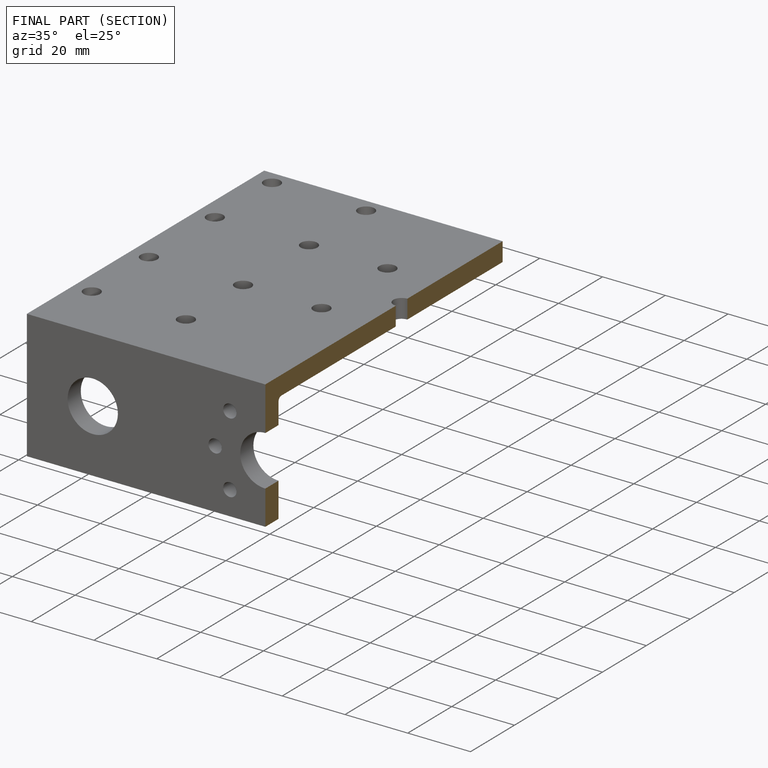
[diagram: finished part — half-section view (interior)]
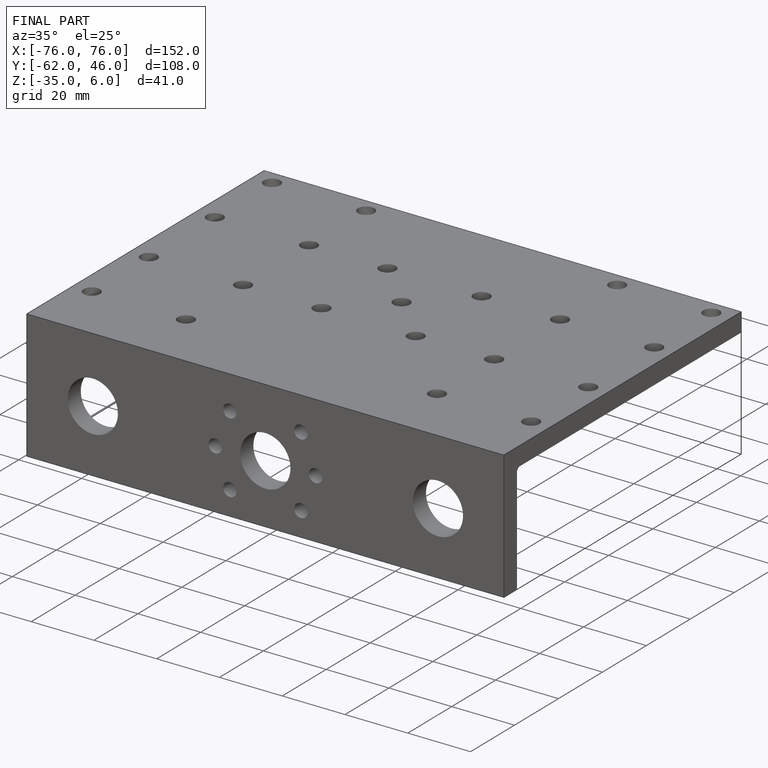
[diagram: finished part — iso view with bounding-box wireframe]
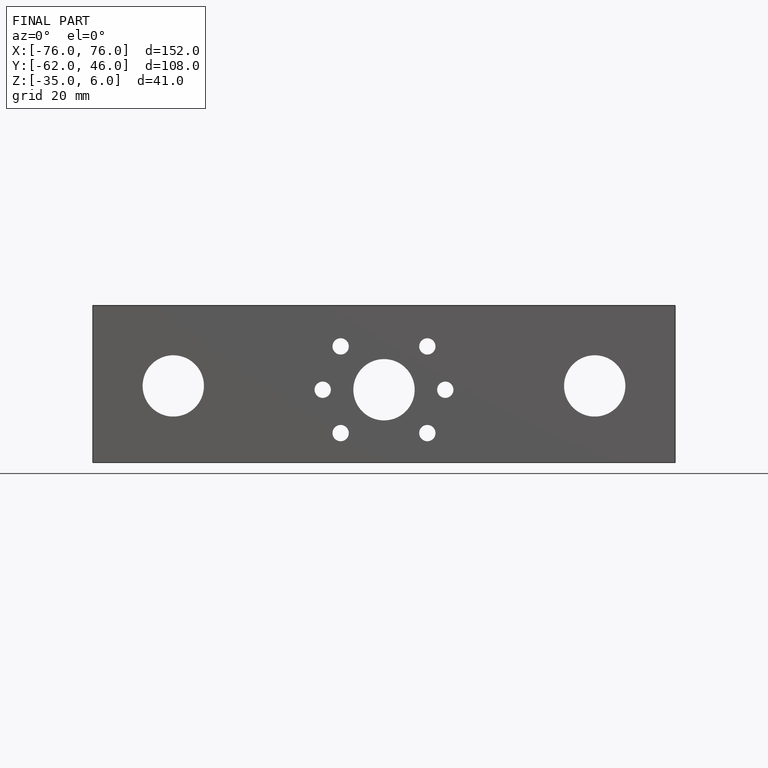
[diagram: finished part — front view with bounding-box wireframe]
